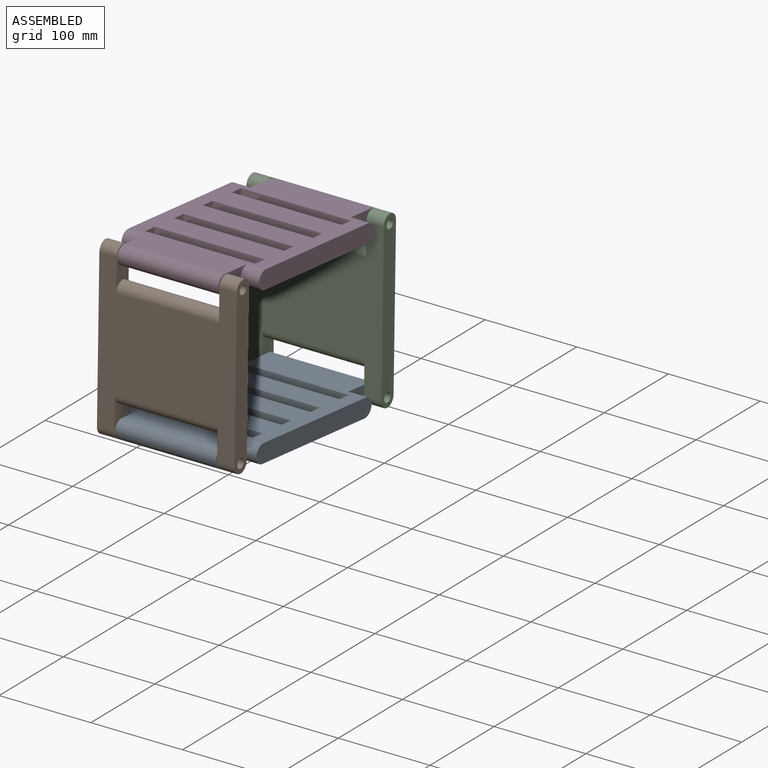
[diagram: assembled view]
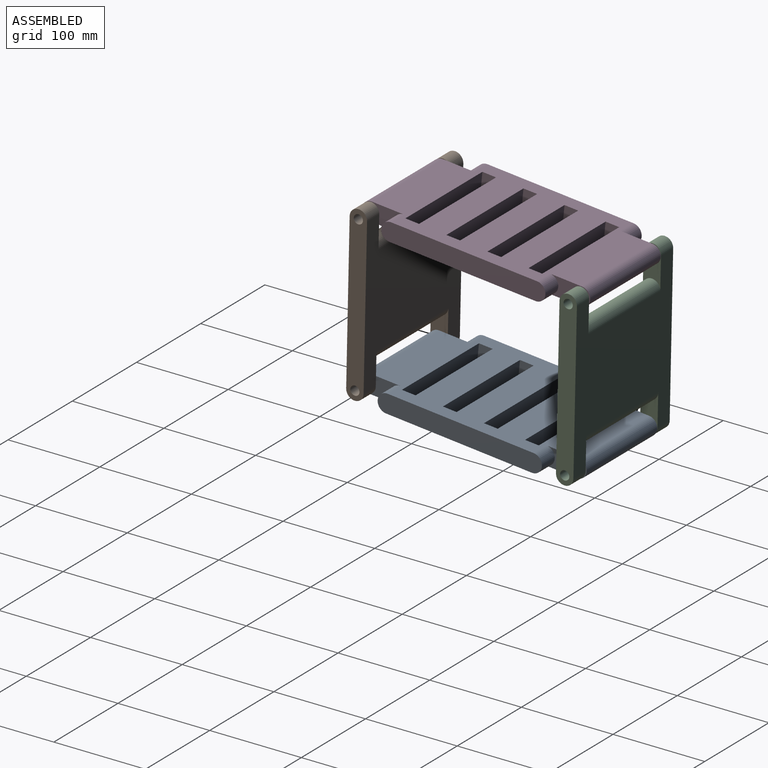
[diagram: assembled view, second angle]
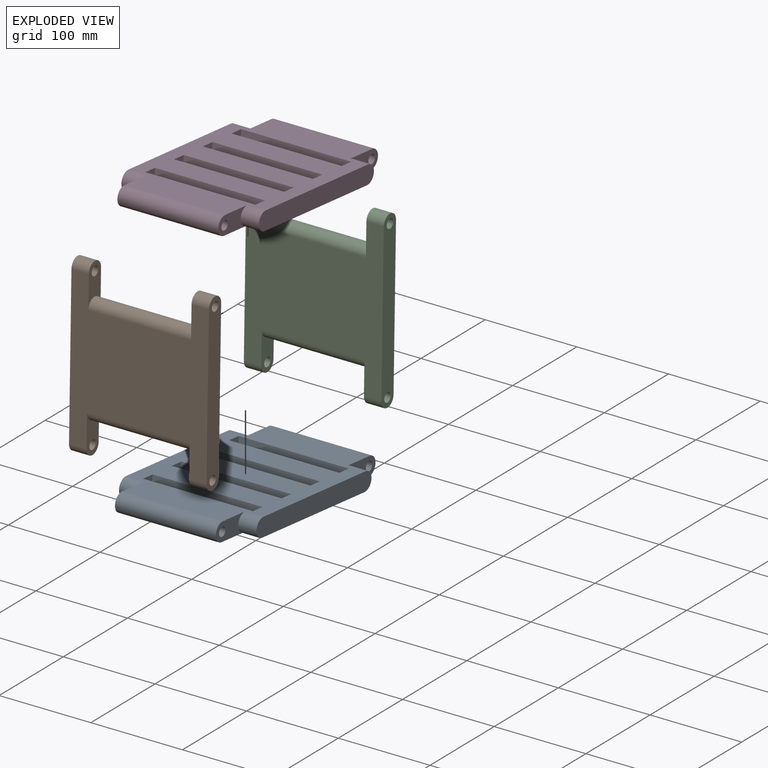
[diagram: exploded view]
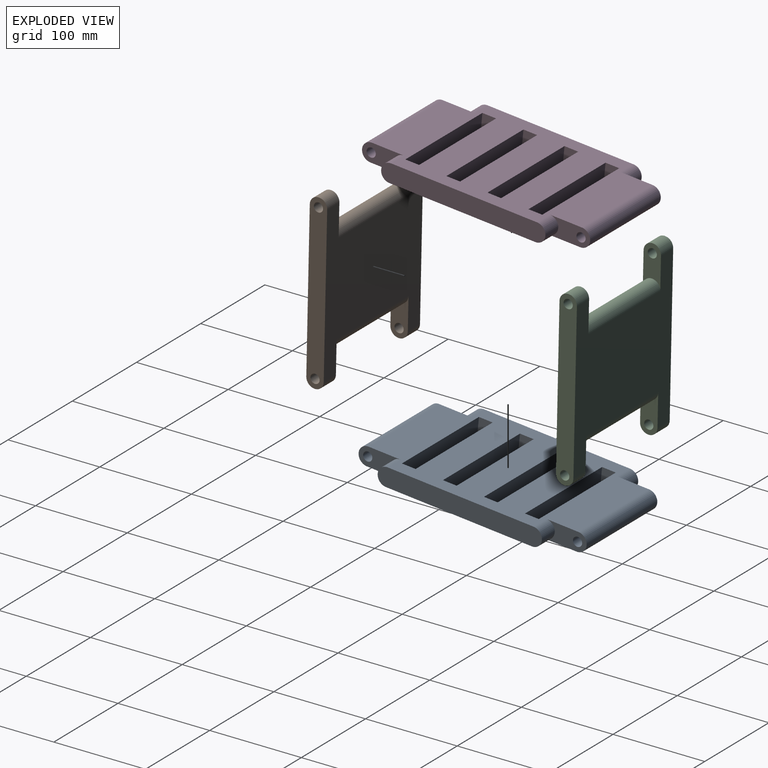
[diagram: exploded view, second angle]
ASSEMBLY  parts=4 mates=7
PART A: 32 faces, bbox 150x250x20 mm
  f0: plane 20x15mm, normal (-1,0,0), area 300mm2, adj f1,f21,f22,f23
  f1: plane 120x20mm, normal (0,1,0), area 2400mm2, adj f0,f2,f22,f23
  f2: plane 20x15mm, normal (1,0,0), area 300mm2, adj f1,f21,f22,f23
  f3: plane 45x20mm, normal (1,0,0), area 621.5mm2, adj f22,f23,f25,f27,f29
  f4: plane 45x20mm, normal (-1,0,0), area 621.5mm2, adj f22,f23,f25,f27,f28
  f5: plane 180x20mm, normal (-1,0,0), area 3514.2mm2, adj f22,f23,f28,f30
  f6: plane 45x20mm, normal (-1,0,0), area 621.5mm2, adj f22,f23,f24,f26,f30
  f7: plane 45x20mm, normal (1,0,0), area 621.5mm2, adj f22,f23,f24,f26,f31
  f8: plane 20x15mm, normal (1,0,0), area 300mm2, adj f9,f18,f22,f23
  f9: plane 120x20mm, normal (0,-1,0), area 2400mm2, adj f8,f10,f22,f23
  f10: plane 20x15mm, normal (-1,0,0), area 300mm2, adj f9,f18,f22,f23
  f11: plane 120x20mm, normal (0,1,0), area 2400mm2, adj f12,f19,f22,f23
  f12: plane 20x15mm, normal (1,0,0), area 300mm2, adj f11,f13,f22,f23
  f13: plane 120x20mm, normal (0,-1,0), area 2400mm2, adj f12,f19,f22,f23
  f14: plane 20x15mm, normal (1,0,0), area 300mm2, adj f15,f20,f22,f23
  f15: plane 120x20mm, normal (0,-1,0), area 2400mm2, adj f14,f16,f22,f23
  f16: plane 20x15mm, normal (-1,0,0), area 300mm2, adj f15,f20,f22,f23
  f17: plane 180x20mm, normal (1,0,0), area 3514.2mm2, adj f22,f23,f29,f31
  f18: plane 120x20mm, normal (0,1,0), area 2400mm2, adj f8,f10,f22,f23
  f19: plane 20x15mm, normal (-1,0,0), area 300mm2, adj f11,f13,f22,f23
  f20: plane 120x20mm, normal (0,1,0), area 2400mm2, adj f14,f16,f22,f23
  f21: plane 120x20mm, normal (0,-1,0), area 2400mm2, adj f0,f2,f22,f23
  f22: plane 230x150mm, normal (0,0,1), area 24500mm2, adj f0,f1,f2,f3,f4,f5,f6,f7
  f23: plane 230x150mm, normal (0,0,-1), area 24500mm2, adj f0,f1,f2,f3,f4,f5,f6,f7
  f24: cylinder r=5mm len=110mm, axis (1,0,0), area 3455.8mm2, adj f6,f7
  f25: cylinder r=10mm len=110mm, axis (1,0,0), area 3455.8mm2, adj f3,f4,f22,f23
  f26: cylinder r=10mm len=110mm, axis (-1,0,0), area 3455.8mm2, adj f6,f7,f22,f23
  f27: cylinder r=5mm len=110mm, axis (-1,0,0), area 3455.8mm2, adj f3,f4
  f28: cylinder r=10mm len=20mm, axis (1,0,0), area 628.3mm2, adj f4,f5,f22,f23
  f29: cylinder r=10mm len=20mm, axis (1,0,0), area 628.3mm2, adj f3,f17,f22,f23
  f30: cylinder r=10mm len=20mm, axis (-1,0,0), area 628.3mm2, adj f5,f6,f22,f23
  f31: cylinder r=10mm len=20mm, axis (-1,0,0), area 628.3mm2, adj f7,f17,f22,f23
PART B: 18 faces, bbox 150x190x19 mm
  f0: plane 44.5x19mm, normal (1,0,0), area 586.5mm2, adj f6,f7,f8,f14,f16
  f1: plane 44.5x19mm, normal (-1,0,0), area 586.5mm2, adj f6,f7,f9,f15,f16
  f2: plane 190x19mm, normal (1,0,0), area 3375.4mm2, adj f6,f7,f9,f11,f12,f15
  f3: plane 44.5x19mm, normal (-1,0,0), area 586.5mm2, adj f6,f7,f11,f12,f17
  f4: plane 44.5x19mm, normal (1,0,0), area 586.5mm2, adj f6,f7,f10,f13,f17
  f5: plane 190x19mm, normal (-1,0,0), area 3375.4mm2, adj f6,f7,f8,f10,f13,f14
  f6: plane 171x150mm, normal (0,0,1), area 17810mm2, adj f0,f1,f2,f3,f4,f5,f12,f13
  f7: plane 171x150mm, normal (0,0,-1), area 17810mm2, adj f0,f1,f2,f3,f4,f5,f12,f13
  f8: cylinder r=5mm len=19mm, axis (-1,0,0), area 596.9mm2, adj f0,f5
  f9: cylinder r=5mm len=19mm, axis (-1,0,0), area 596.9mm2, adj f1,f2
  f10: cylinder r=5mm len=19mm, axis (-1,0,0), area 596.9mm2, adj f4,f5
  f11: cylinder r=5mm len=19mm, axis (-1,0,0), area 596.9mm2, adj f2,f3
  f12: cylinder r=9.5mm len=19mm, axis (1,0,0), area 567.1mm2, adj f2,f3,f6,f7
  f13: cylinder r=9.5mm len=19mm, axis (1,0,0), area 567.1mm2, adj f4,f5,f6,f7
  f14: cylinder r=9.5mm len=19mm, axis (-1,0,0), area 567.1mm2, adj f0,f5,f6,f7
  f15: cylinder r=9.5mm len=19mm, axis (-1,0,0), area 567.1mm2, adj f1,f2,f6,f7
  f16: cylinder r=9.5mm len=112mm, axis (-1,0,0), area 3342.7mm2, adj f0,f1,f6,f7
  f17: cylinder r=9.5mm len=112mm, axis (1,0,0), area 3342.7mm2, adj f3,f4,f6,f7
PART C: same geometry as B
PART D: same geometry as A
PLACE A rot(axis=(-1,0,0),5.7deg) t=(-173.22,-8.49,70.57)mm
PLACE B rot(axis=(1,0,0),88.7deg) t=(-361.31,-56.3,246.45)mm
PLACE C rot(axis=(1,0,0),88.7deg) t=(-361.31,172.61,224.07)mm
PLACE D rot(axis=(-1,0,0),5.6deg) t=(-173.22,-4.69,240.66)mm
MATE cylindrical D.f25 <-> C.f10  axis (1,0,0) through (-88.15,163.33,234.28)mm
MATE planar B.f5 <-> A.f5  axis (-1,0,0) through (-218.15,-67.46,171.68)mm
MATE planar B.f5 <-> D.f5  axis (-1,0,0) through (-218.15,-67.46,171.68)mm
MATE cylindrical D.f24 <-> B.f10  axis (1,0,0) through (-88.15,-65.57,256.66)mm
MATE cylindrical A.f24 <-> B.f8  axis (1,0,0) through (-88.15,-69.35,86.7)mm
MATE cylindrical C.f14 <-> A.f25  axis (-1,0,0) through (-87.15,159.51,63.82)mm
MATE planar D.f17 <-> C.f2  axis (1,0,0) through (-68.15,48.88,245.47)mm
